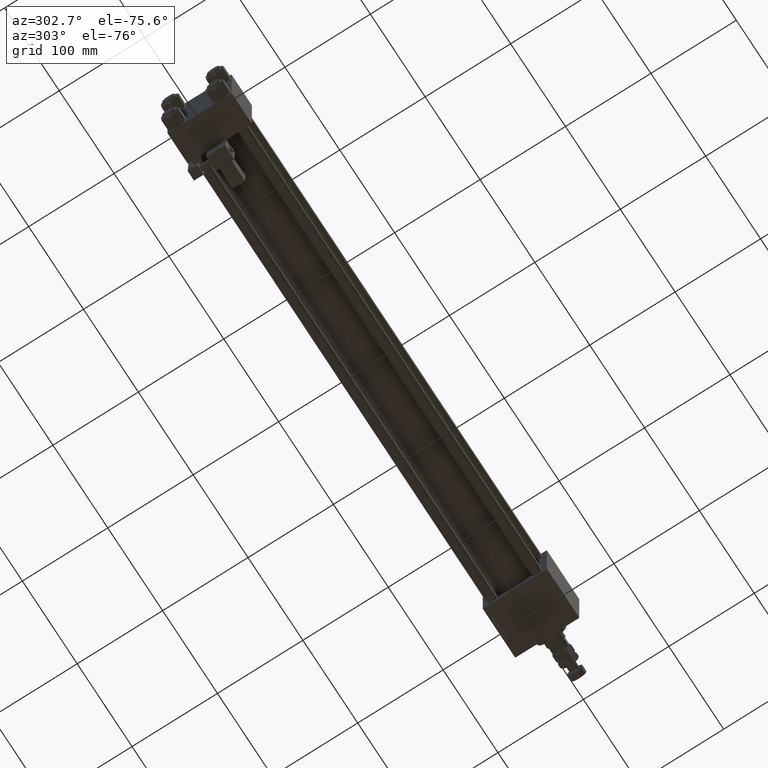
[diagram: clean part render]
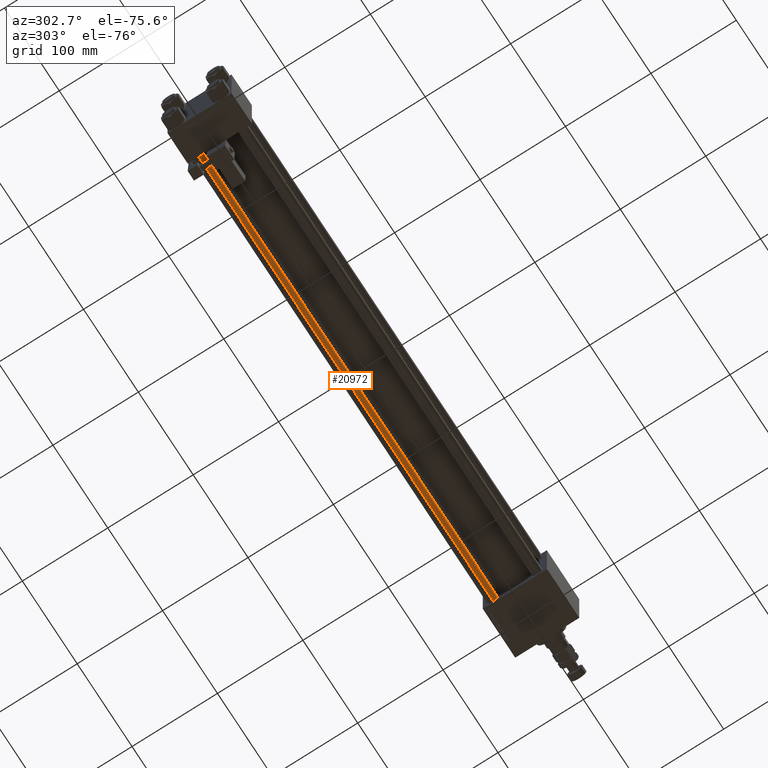
[diagram: same view with one face highlighted and labeled with its STEP entity id]
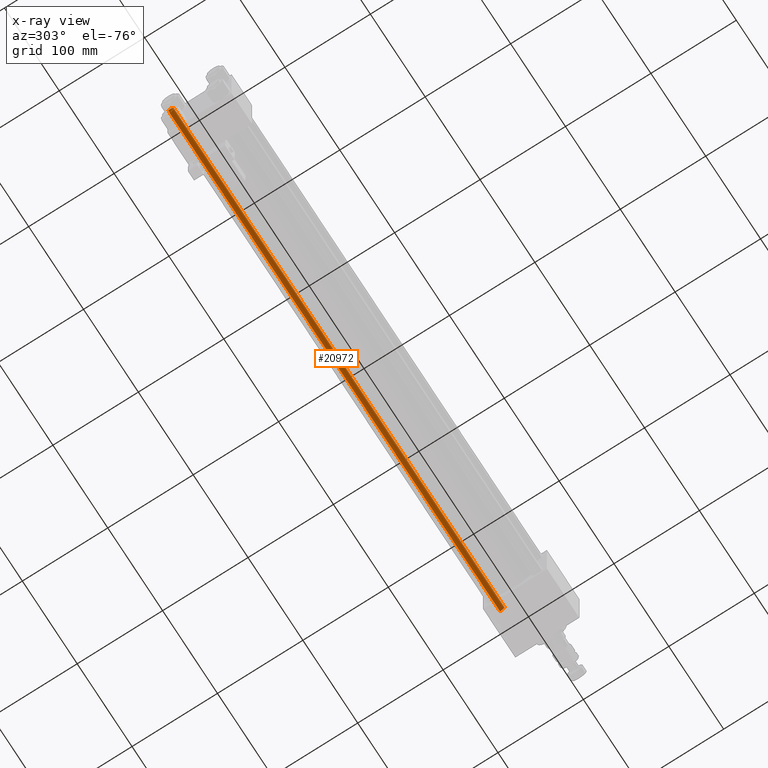
[diagram: x-ray of the same camera — body ghosted, the highlighted face saturated]
A machine part, auxiliary view. The second image highlights one B-rep face of the part: STEP entity #20972.
The next image is the same camera in x-ray: the body ghosted, the highlighted face saturated — about 0% of this face is hidden behind the body in this view.
In plain terms, the highlighted cylindrical surface (edge-blend (fillet) strip) has radius 6 mm, axis along (1, -0, 0).
Its self-contained STEP definition (entity closure, byte-faithful):
#847 = VECTOR ( 'NONE', #46413, 1000.000000000000000 ) ;
#3285 = VERTEX_POINT ( 'NONE', #34039 ) ;
#3355 = CARTESIAN_POINT ( 'NONE',  ( 0.000000000000000000, 0.000000000000000000, 0.4999999999999449329 ) ) ;
#7730 = EDGE_CURVE ( 'NONE', #3285, #19996, #29875, .T. ) ;
#9696 = DIRECTION ( 'NONE',  ( -0.000000000000000000, -0.000000000000000000, -1.000000000000000000 ) ) ;
#10483 = CARTESIAN_POINT ( 'NONE',  ( 0.000000000000000000, 0.000000000000000000, 604.0000000000000000 ) ) ;
#12432 = CARTESIAN_POINT ( 'NONE',  ( -6.000000000000000888, 0.000000000000000000, 604.0000000000000000 ) ) ;
#13709 = CARTESIAN_POINT ( 'NONE',  ( -6.000000000000000888, 0.000000000000000000, 603.5000000000001137 ) ) ;
#15427 = DIRECTION ( 'NONE',  ( -0.000000000000000000, -0.000000000000000000, 1.000000000000000000 ) ) ;
#17876 = EDGE_CURVE ( 'NONE', #34839, #3285, #53565, .T. ) ;
#17902 = CARTESIAN_POINT ( 'NONE',  ( 6.000000000000000888, 7.347880794884120722E-16, 604.0000000000000000 ) ) ;
#19996 = VERTEX_POINT ( 'NONE', #22019 ) ;
#20316 = EDGE_CURVE ( 'NONE', #31353, #34839, #45796, .T. ) ;
#20972 = ADVANCED_FACE ( 'NONE', ( #42851 ), #30506, .T. ) ;
#21941 = CARTESIAN_POINT ( 'NONE',  ( 6.000000000000000888, 7.347880794884120722E-16, 603.5000000000001137 ) ) ;
#22019 = CARTESIAN_POINT ( 'NONE',  ( 6.000000000000000888, 7.347880794884120722E-16, 0.4999999999999449329 ) ) ;
#24794 = AXIS2_PLACEMENT_3D ( 'NONE', #10483, #9696, #47212 ) ;
#25225 = DIRECTION ( 'NONE',  ( 0.000000000000000000, 0.000000000000000000, -1.000000000000000000 ) ) ;
#25643 = ORIENTED_EDGE ( 'NONE', *, *, #20316, .T. ) ;
#26561 = AXIS2_PLACEMENT_3D ( 'NONE', #46053, #25225, #41956 ) ;
#27692 = ORIENTED_EDGE ( 'NONE', *, *, #17876, .T. ) ;
#29000 = AXIS2_PLACEMENT_3D ( 'NONE', #3355, #15427, #44473 ) ;
#29875 = CIRCLE ( 'NONE', #29000, 6.000000000000000888 ) ;
#30506 = CYLINDRICAL_SURFACE ( 'NONE', #24794, 6.000000000000000888 ) ;
#31353 = VERTEX_POINT ( 'NONE', #21941 ) ;
#34039 = CARTESIAN_POINT ( 'NONE',  ( -6.000000000000000888, 0.000000000000000000, 0.4999999999999449329 ) ) ;
#34839 = VERTEX_POINT ( 'NONE', #13709 ) ;
#38434 = EDGE_CURVE ( 'NONE', #31353, #19996, #50524, .T. ) ;
#41956 = DIRECTION ( 'NONE',  ( 1.000000000000000000, 0.000000000000000000, 0.000000000000000000 ) ) ;
#42033 = DIRECTION ( 'NONE',  ( -0.000000000000000000, -0.000000000000000000, -1.000000000000000000 ) ) ;
#42851 = FACE_OUTER_BOUND ( 'NONE', #44082, .T. ) ;
#44082 = EDGE_LOOP ( 'NONE', ( #52368, #25643, #27692, #48100 ) ) ;
#44473 = DIRECTION ( 'NONE',  ( 1.000000000000000000, 0.000000000000000000, 0.000000000000000000 ) ) ;
#45796 = CIRCLE ( 'NONE', #26561, 6.000000000000000888 ) ;
#46053 = CARTESIAN_POINT ( 'NONE',  ( 0.000000000000000000, 0.000000000000000000, 603.5000000000001137 ) ) ;
#46413 = DIRECTION ( 'NONE',  ( -0.000000000000000000, -0.000000000000000000, -1.000000000000000000 ) ) ;
#47212 = DIRECTION ( 'NONE',  ( -1.000000000000000000, 0.000000000000000000, 0.000000000000000000 ) ) ;
#48100 = ORIENTED_EDGE ( 'NONE', *, *, #7730, .T. ) ;
#50524 = LINE ( 'NONE', #17902, #847 ) ;
#52008 = VECTOR ( 'NONE', #42033, 1000.000000000000000 ) ;
#52368 = ORIENTED_EDGE ( 'NONE', *, *, #38434, .F. ) ;
#53565 = LINE ( 'NONE', #12432, #52008 ) ;